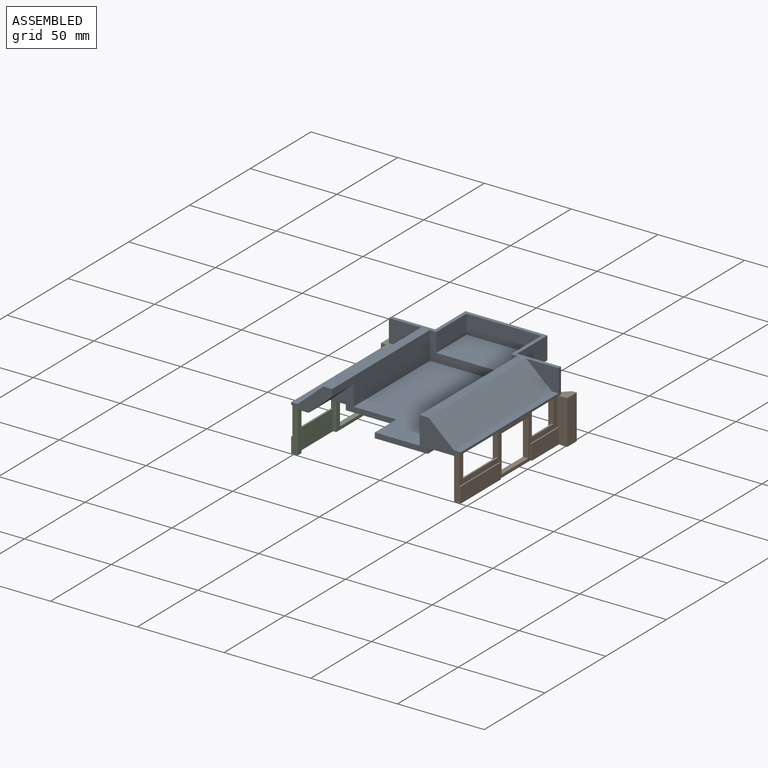
[diagram: assembled view]
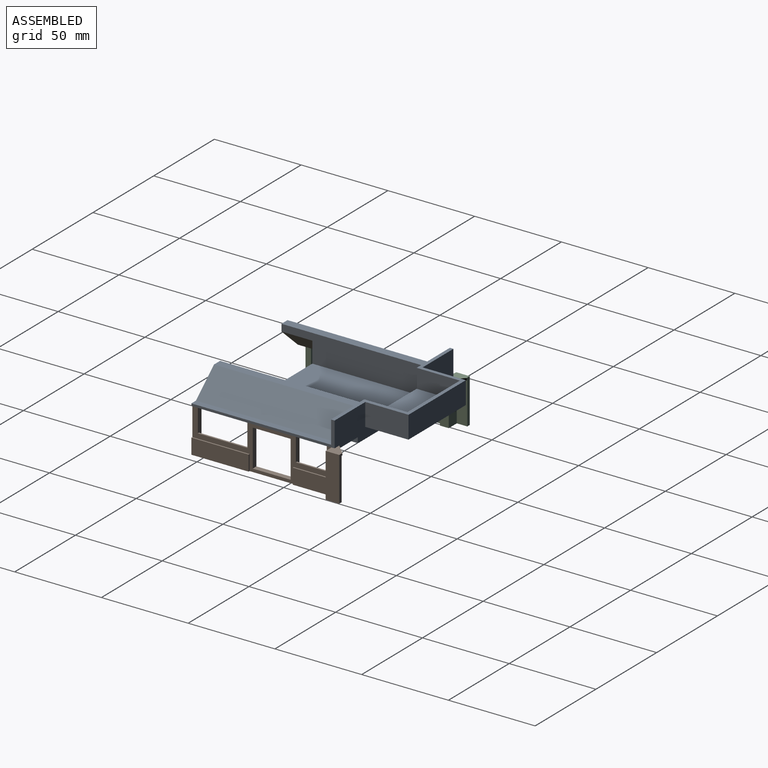
[diagram: assembled view, second angle]
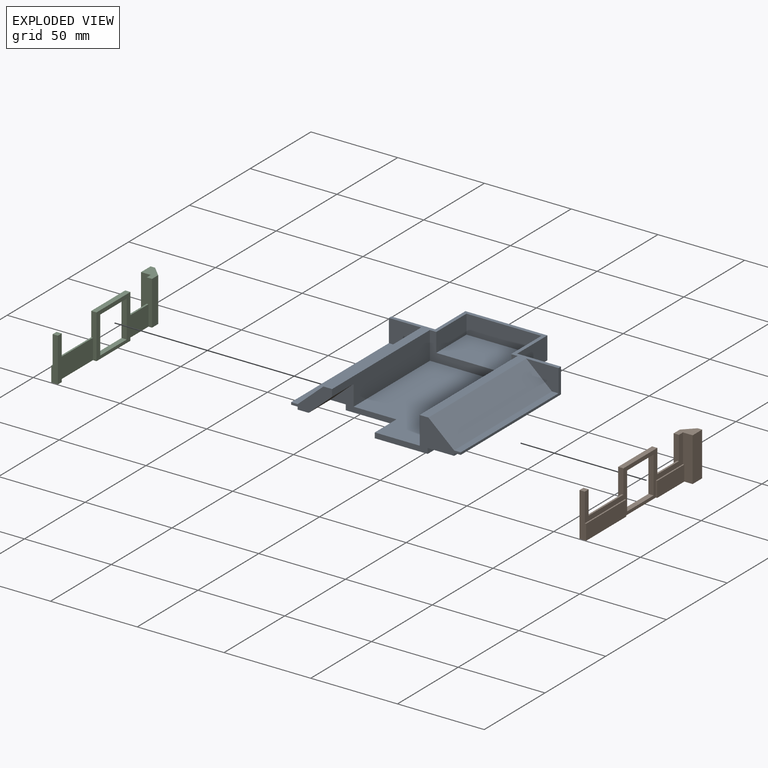
[diagram: exploded view]
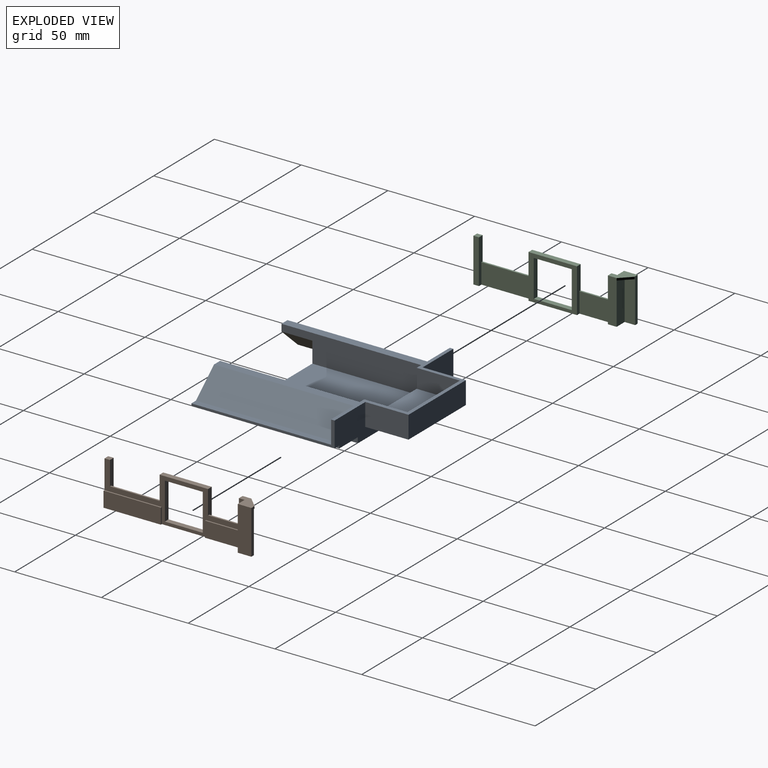
[diagram: exploded view, second angle]
ASSEMBLY  parts=3 mates=6
PART A: 48 faces, bbox 97.8x107.4x19.1 mm
  f0: plane 23.62x16mm, normal (0,-1,0), area 144.1mm2, adj f9,f10,f11,f12,f13,f14,f15,f16
  f1: plane 80.52x50.55mm, normal (0,0,1), area 3631.8mm2, adj f3,f4,f5,f10,f20,f26
  f2: plane 64.77x3.05mm, normal (-1,0,0), area 197.4mm2, adj f3,f7,f8,f9
  f3: plane 38.1x15.01mm, normal (0,-1,0), area 169.5mm2, adj f1,f2,f4,f8,f9,f10,f24
  f4: plane 17.78x3.05mm, normal (-1,0,0), area 54.2mm2, adj f1,f3,f5,f8
  f5: plane 49.53x19.05mm, normal (0,-1,0), area 317.5mm2, adj f1,f4,f6,f8,f11,f17,f18,f19
  f6: plane 82.55x3.05mm, normal (1,0,0), area 251.6mm2, adj f5,f7,f8,f17
  f7: plane 97.79x19.05mm, normal (0,1,0), area 1123.2mm2, adj f2,f6,f8,f9,f11,f14,f15,f16
  f8: plane 82.55x59.69mm, normal (0,0,-1), area 4408.1mm2, adj f2,f3,f4,f5,f6,f7
  f9: plane 82.55x15.24mm, normal (0,0,-1), area 1100mm2, adj f0,f2,f3,f7,f16,f24
  f10: plane 80.52x16mm, normal (1,0,0), area 1075.8mm2, adj f0,f1,f3,f11,f24,f26
  f11: plane 107.44x97.79mm, normal (0,0,1), area 1105.1mm2, adj f0,f5,f7,f10,f12,f14,f19,f20
  f12: plane 80.52x14.81mm, normal (-0.66,0,0.75), area 1595.2mm2, adj f0,f11,f13,f25
  f13: plane 80.52x3.81mm, normal (0,0,1), area 306.8mm2, adj f0,f12,f14,f25
  f14: plane 82.55x14.48mm, normal (-1,0,0), area 135.7mm2, adj f0,f7,f11,f13,f15,f25
  f15: plane 82.55x3.81mm, normal (0,0,-1), area 314.5mm2, adj f0,f7,f14,f16
  f16: plane 82.55x1.52mm, normal (-1,0,0), area 125.8mm2, adj f0,f7,f9,f15
  f17: plane 82.55x15.24mm, normal (0,0,-1), area 1258.1mm2, adj f5,f6,f7,f21
  f18: plane 80.52x3.81mm, normal (0,0,1), area 306.8mm2, adj f5,f19,f23,f27
  f19: plane 80.52x14.81mm, normal (0.66,0,0.75), area 1595.2mm2, adj f5,f11,f18,f27
  f20: plane 80.52x16mm, normal (-1,0,0), area 1288.4mm2, adj f1,f5,f11,f26
  f21: plane 82.55x1.52mm, normal (1,0,0), area 125.8mm2, adj f5,f7,f17,f22
  f22: plane 82.55x3.81mm, normal (0,0,-1), area 314.5mm2, adj f5,f7,f21,f23
  f23: plane 82.55x14.48mm, normal (1,0,0), area 135.7mm2, adj f5,f7,f11,f18,f22,f27
  f24: plane 17.78x13.46mm, normal (0.66,0,-0.75), area 320.2mm2, adj f0,f3,f9,f10
  f25: plane 18.62x13.16mm, normal (0,-1,0), area 147.6mm2, adj f11,f12,f13,f14
  f26: plane 50.55x16mm, normal (0,-1,0), area 337.2mm2, adj f1,f10,f11,f20,f28,f29,f30
  f27: plane 18.62x13.16mm, normal (0,-1,0), area 147.6mm2, adj f11,f18,f19,f23
  f28: plane 24.89x10.92mm, normal (1,0,0), area 271.9mm2, adj f11,f26,f29,f35
  f29: plane 43.18x24.89mm, normal (0,0,1), area 1074.8mm2, adj f26,f28,f30,f35
  f30: plane 24.89x10.92mm, normal (-1,0,0), area 271.9mm2, adj f11,f26,f29,f35
  f31: plane 24.89x12.95mm, normal (1,0,0), area 322.5mm2, adj f7,f11,f32,f34
  f32: plane 47.24x24.89mm, normal (0,0,-1), area 1176mm2, adj f7,f31,f33,f34
  f33: plane 24.89x12.95mm, normal (-1,0,0), area 322.5mm2, adj f7,f11,f32,f34
  f34: plane 47.24x12.95mm, normal (0,1,0), area 612mm2, adj f11,f31,f32,f33
  f35: plane 43.18x10.92mm, normal (0,-1,0), area 471.6mm2, adj f11,f28,f29,f30
  f36: plane 60.71x2.93mm, normal (-0.71,0,-0.71), area 251.5mm2, adj f37,f39,f40,f41
  f37: plane 60.71x13mm, normal (0.71,0,-0.71), area 1116.2mm2, adj f36,f38,f40,f41
  f38: plane 60.71x15.93mm, normal (0,0,1), area 967.2mm2, adj f37,f39,f40,f41
  f39: plane 60.71x10.07mm, normal (-1,0,0), area 611.4mm2, adj f36,f38,f40,f41
  f40: plane 15.93x13mm, normal (0,-1,0), area 118.3mm2, adj f36,f37,f38,f39
  f41: plane 15.93x13mm, normal (0,1,0), area 118.3mm2, adj f36,f37,f38,f39
  f42: plane 60.71x10.07mm, normal (1,0,0), area 611.4mm2, adj f43,f45,f46,f47
  f43: plane 60.71x15.93mm, normal (0,0,1), area 967.2mm2, adj f42,f44,f46,f47
  f44: plane 60.71x13mm, normal (-0.71,0,-0.71), area 1116.2mm2, adj f43,f45,f46,f47
  f45: plane 60.71x2.93mm, normal (0.71,0,-0.71), area 251.5mm2, adj f42,f44,f46,f47
  f46: plane 15.93x13mm, normal (0,-1,0), area 118.3mm2, adj f42,f43,f44,f45
  f47: plane 15.93x13mm, normal (0,1,0), area 118.3mm2, adj f42,f43,f44,f45
PART B: 34 faces, bbox 88.6x8.6x25.4 mm
  f0: plane 80.77x25.4mm, normal (0,1,0), area 457.5mm2, adj f1,f2,f7,f8,f12,f14,f15,f16
  f1: plane 27.94x3.03mm, normal (0,0,1), area 84.7mm2, adj f0,f5,f14,f15
  f2: plane 3.18x3.03mm, normal (0,0,1), area 9.6mm2, adj f0,f8,f16,f17
  f3: plane 24.13x6.03mm, normal (0,-1,0), area 145.6mm2, adj f4,f10,f19,f33
  f4: plane 24.13x6.6mm, normal (-1,0,0), area 159.4mm2, adj f3,f11,f19,f33
  f5: plane 27.94x25.4mm, normal (0,-1,0), area 243.6mm2, adj f1,f14,f15,f19,f27,f28,f29,f30
  f6: plane 28.58x11.68mm, normal (0,-1,0), area 333.9mm2, adj f15,f16,f19,f26
  f7: plane 25.4x5.6mm, normal (1,0,0), area 135.4mm2, adj f0,f9,f18,f19,f24,f25
  f8: plane 25.4x3.81mm, normal (1,0,0), area 83.9mm2, adj f0,f2,f17,f19,f20,f22
  f9: plane 25.4x7.81mm, normal (0,1,0), area 198.4mm2, adj f7,f10,f18,f19
  f10: plane 25.4x2.6mm, normal (-1,0,0), area 52.3mm2, adj f3,f9,f18,f19,f32,f33
  f11: plane 25.4x5.08mm, normal (0,-1,0), area 129mm2, adj f4,f12,f18,f19,f32
  f12: plane 25.4x3.03mm, normal (1,0,0), area 65.3mm2, adj f0,f11,f13,f18,f19,f31
  f13: plane 17.78x11.68mm, normal (0,-1,0), area 207.7mm2, adj f12,f14,f19,f31
  f14: plane 25.4x3.03mm, normal (-1,0,0), area 65.3mm2, adj f0,f1,f5,f13,f19,f31
  f15: plane 25.4x3.03mm, normal (1,0,0), area 65.3mm2, adj f0,f1,f5,f6,f19,f26
  f16: plane 25.4x3.03mm, normal (-1,0,0), area 65.3mm2, adj f0,f2,f6,f17,f19,f26
  f17: plane 25.4x3.18mm, normal (0,-1,0), area 80.6mm2, adj f2,f8,f16,f19
  f18: plane 11.11x8.64mm, normal (0,0,1), area 59.3mm2, adj f0,f7,f9,f10,f11,f12,f32
  f19: plane 88.58x8.64mm, normal (0,0,-1), area 221.4mm2, adj f0,f3,f4,f5,f6,f7,f8,f9
  f20: plane 33.02x0.78mm, normal (0,0,1), area 25.7mm2, adj f0,f8,f21,f22
  f21: plane 8.89x0.78mm, normal (-1,0,0), area 6.9mm2, adj f0,f19,f20,f22
  f22: plane 33.02x8.89mm, normal (0,1,0), area 293.5mm2, adj f8,f19,f20,f21
  f23: plane 8.89x0.78mm, normal (1,0,0), area 6.9mm2, adj f0,f19,f24,f25
  f24: plane 22.35x0.78mm, normal (0,0,1), area 17.4mm2, adj f0,f7,f23,f25
  f25: plane 22.35x8.89mm, normal (0,1,0), area 198.7mm2, adj f7,f19,f23,f24
  f26: plane 28.58x1mm, normal (0,0,1), area 28.6mm2, adj f0,f6,f15,f16
  f27: plane 21.34x3.03mm, normal (-1,0,0), area 64.7mm2, adj f0,f5,f28,f30
  f28: plane 21.84x3.03mm, normal (0,0,1), area 66.2mm2, adj f0,f5,f27,f29
  f29: plane 21.34x3.03mm, normal (1,0,0), area 64.7mm2, adj f0,f5,f28,f30
  f30: plane 21.84x3.03mm, normal (0,0,-1), area 66.2mm2, adj f0,f5,f27,f29
  f31: plane 17.78x1mm, normal (0,0,1), area 17.8mm2, adj f0,f12,f13,f14
  f32: plane 6.03x6.03mm, normal (-0.71,-0.71,0), area 10.8mm2, adj f10,f11,f18,f33
  f33: plane 6.6x6.03mm, normal (0,0,-1), area 21.6mm2, adj f3,f4,f10,f32
PART C: 34 faces, bbox 88.6x8.6x25.4 mm
  f0: plane 80.77x25.4mm, normal (0,-1,0), area 457.5mm2, adj f1,f2,f7,f8,f12,f14,f15,f16
  f1: plane 27.94x3.03mm, normal (0,0,1), area 84.7mm2, adj f0,f5,f14,f15
  f2: plane 3.18x3.03mm, normal (0,0,1), area 9.6mm2, adj f0,f8,f16,f17
  f3: plane 24.13x6.03mm, normal (0,1,0), area 145.6mm2, adj f4,f10,f19,f33
  f4: plane 24.13x6.6mm, normal (-1,0,0), area 159.4mm2, adj f3,f11,f19,f33
  f5: plane 27.94x25.4mm, normal (0,1,0), area 243.6mm2, adj f1,f14,f15,f19,f27,f28,f29,f30
  f6: plane 28.58x11.68mm, normal (0,1,0), area 333.9mm2, adj f15,f16,f19,f26
  f7: plane 25.4x5.6mm, normal (1,0,0), area 135.4mm2, adj f0,f9,f18,f19,f24,f25
  f8: plane 25.4x3.81mm, normal (1,0,0), area 83.9mm2, adj f0,f2,f17,f19,f20,f22
  f9: plane 25.4x7.81mm, normal (0,-1,0), area 198.4mm2, adj f7,f10,f18,f19
  f10: plane 25.4x2.6mm, normal (-1,0,0), area 52.3mm2, adj f3,f9,f18,f19,f32,f33
  f11: plane 25.4x5.08mm, normal (0,1,0), area 129mm2, adj f4,f12,f18,f19,f32
  f12: plane 25.4x3.03mm, normal (1,0,0), area 65.3mm2, adj f0,f11,f13,f18,f19,f31
  f13: plane 17.78x11.68mm, normal (0,1,0), area 207.7mm2, adj f12,f14,f19,f31
  f14: plane 25.4x3.03mm, normal (-1,0,0), area 65.3mm2, adj f0,f1,f5,f13,f19,f31
  f15: plane 25.4x3.03mm, normal (1,0,0), area 65.3mm2, adj f0,f1,f5,f6,f19,f26
  f16: plane 25.4x3.03mm, normal (-1,0,0), area 65.3mm2, adj f0,f2,f6,f17,f19,f26
  f17: plane 25.4x3.18mm, normal (0,1,0), area 80.6mm2, adj f2,f8,f16,f19
  f18: plane 11.11x8.64mm, normal (0,0,1), area 59.3mm2, adj f0,f7,f9,f10,f11,f12,f32
  f19: plane 88.58x8.64mm, normal (0,0,-1), area 221.4mm2, adj f0,f3,f4,f5,f6,f7,f8,f9
  f20: plane 33.02x0.78mm, normal (0,0,1), area 25.7mm2, adj f0,f8,f21,f22
  f21: plane 8.89x0.78mm, normal (-1,0,0), area 6.9mm2, adj f0,f19,f20,f22
  f22: plane 33.02x8.89mm, normal (0,-1,0), area 293.5mm2, adj f8,f19,f20,f21
  f23: plane 8.89x0.78mm, normal (1,0,0), area 6.9mm2, adj f0,f19,f24,f25
  f24: plane 22.35x0.78mm, normal (0,0,1), area 17.4mm2, adj f0,f7,f23,f25
  f25: plane 22.35x8.89mm, normal (0,-1,0), area 198.7mm2, adj f7,f19,f23,f24
  f26: plane 28.58x1mm, normal (0,0,1), area 28.6mm2, adj f0,f6,f15,f16
  f27: plane 21.34x3.03mm, normal (-1,0,0), area 64.7mm2, adj f0,f5,f28,f30
  f28: plane 21.84x3.03mm, normal (0,0,1), area 66.2mm2, adj f0,f5,f27,f29
  f29: plane 21.34x3.03mm, normal (1,0,0), area 64.7mm2, adj f0,f5,f28,f30
  f30: plane 21.84x3.03mm, normal (0,0,-1), area 66.2mm2, adj f0,f5,f27,f29
  f31: plane 17.78x1mm, normal (0,0,1), area 17.8mm2, adj f0,f12,f13,f14
  f32: plane 6.03x6.03mm, normal (-0.71,0.71,0), area 10.8mm2, adj f10,f11,f18,f33
  f33: plane 6.6x6.03mm, normal (0,0,-1), area 21.6mm2, adj f3,f4,f10,f32
PLACE A t=(0.2,-12.53,-10.34)mm fixed
PLACE B rot(axis=(0,0,-1),90deg) t=(45.29,-53.81,-31.16)mm
PLACE C rot(axis=(0,0,-1),90deg) t=(5.92,-53.81,-31.16)mm
MATE planar C.f5 <-> A.f16  axis (1,0,0) through (-44.88,-8.09,-17.98)mm
MATE planar C.f8 <-> A.f0  axis (0,-1,0) through (-46.56,-53.81,-19.14)mm
MATE planar B.f5 <-> A.f21  axis (-1,0,0) through (45.29,-8.09,-17.98)mm
MATE planar C.f1 <-> A.f15  axis (0,0,1) through (-46.4,-8.09,-5.76)mm
MATE planar B.f8 <-> A.f5  axis (0,-1,0) through (46.96,-53.81,-19.14)mm
MATE planar B.f1 <-> A.f22  axis (0,0,1) through (46.8,-8.09,-5.76)mm
